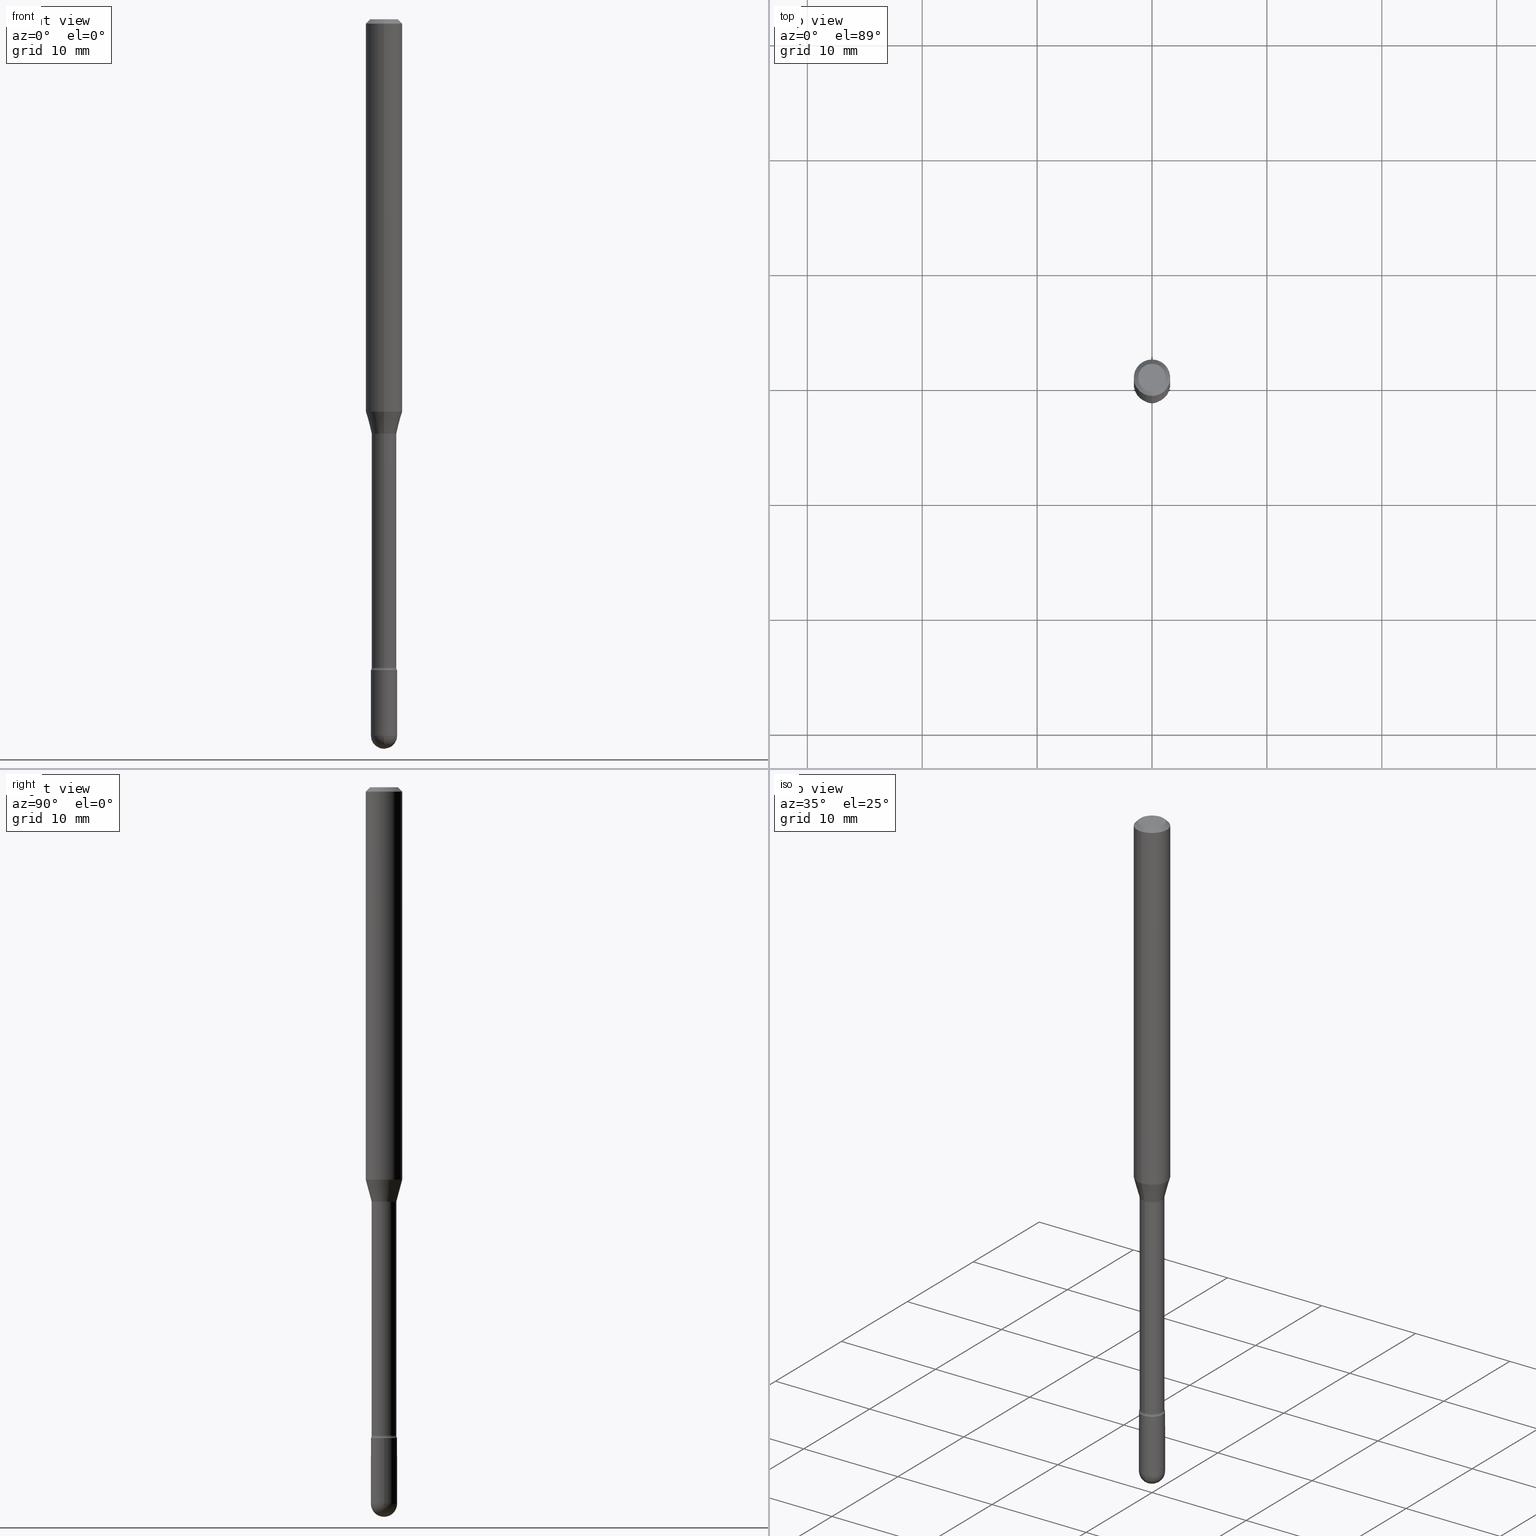
[diagram: canonical four-view strip — front | top / right | iso, engineering-drawing reading convention]
A machine part, canonical four-view strip (front | top / right | iso — engineering-drawing reading convention). The complete STEP part file that produces these views, byte-faithful:
ISO-10303-21;
HEADER;
FILE_DESCRIPTION (( 'STEP AP203' ),
    '1' );
FILE_NAME ('03798.STEP',
    '2024-04-09T20:30:29',
    ( '' ),
    ( '' ),
    'SwSTEP 2.0',
    'SolidWorks 2023',
    '' );
FILE_SCHEMA (( 'CONFIG_CONTROL_DESIGN' ));
ENDSEC;

DATA;
#1 = CARTESIAN_POINT ( 'NONE',  ( 5.432399980752294225E-29, -7.756027437338970612E-15, -2.221414547187247734 ) ) ;
#2 = EDGE_CURVE ( 'NONE', #392, #203, #393, .T. ) ;
#3 = ORIENTED_EDGE ( 'NONE', *, *, #366, .F. ) ;
#4 =( NAMED_UNIT ( * ) PLANE_ANGLE_UNIT ( ) SI_UNIT ( $, .RADIAN. ) );
#5 = ADVANCED_FACE ( 'NONE', ( #401 ), #406, .T. ) ;
#6 = TOROIDAL_SURFACE ( 'NONE', #330, 0.05730000000000000371, 0.01500000000000002373 ) ;
#7 = AXIS2_PLACEMENT_3D ( 'NONE', #399, #521, #439 ) ;
#8 = ADVANCED_FACE ( 'NONE', ( #484 ), #396, .T. ) ;
#9 = VERTEX_POINT ( 'NONE', #311 ) ;
#10 = ORIENTED_EDGE ( 'NONE', *, *, #250, .F. ) ;
#11 = ORIENTED_EDGE ( 'NONE', *, *, #540, .F. ) ;
#12 = PERSON_AND_ORGANIZATION ( #244, #408 ) ;
#13 = PERSON_AND_ORGANIZATION_ROLE ( 'classification_officer' ) ;
#14 = TOROIDAL_SURFACE ( 'NONE', #177, 0.05730000000000009391, 0.01499999999999997169 ) ;
#15 = CC_DESIGN_SECURITY_CLASSIFICATION ( #33, ( #350 ) ) ;
#16 = CARTESIAN_POINT ( 'NONE',  ( 4.071409875905923573E-16, 0.05729999999999233623, -2.221414547187248179 ) ) ;
#17 = EDGE_CURVE ( 'NONE', #344, #522, #564, .T. ) ;
#18 = LINE ( 'NONE', #510, #277 ) ;
#19 = DIRECTION ( 'NONE',  ( -2.445448483351533547E-29, 3.491510442297568953E-15, 1.000000000000000000 ) ) ;
#20 = CYLINDRICAL_SURFACE ( 'NONE', #457, 0.04499999999999999833 ) ;
#21 = ADVANCED_FACE ( 'NONE', ( #261 ), #76, .T. ) ;
#22 = ORIENTED_EDGE ( 'NONE', *, *, #166, .T. ) ;
#23 = LINE ( 'NONE', #62, #30 ) ;
#24 = CARTESIAN_POINT ( 'NONE',  ( -0.04499999999999999833, -7.859050805148022285E-15, -2.229999999999999982 ) ) ;
#25 = DIRECTION ( 'NONE',  ( 1.000000000000000000, -6.982962677686269077E-15, 0.000000000000000000 ) ) ;
#26 = ORIENTED_EDGE ( 'NONE', *, *, #296, .F. ) ;
#27 = EDGE_CURVE ( 'NONE', #287, #229, #232, .T. ) ;
#28 = CARTESIAN_POINT ( 'NONE',  ( 6.003625919184510659E-29, -8.571586686859923311E-15, -2.455000000000000071 ) ) ;
#29 = CARTESIAN_POINT ( 'NONE',  ( 4.440892098500956497E-16, 0.06249999999999533706, -1.344612573687109514 ) ) ;
#30 = VECTOR ( 'NONE', #239, 39.37007874015748143 ) ;
#31 = EDGE_LOOP ( 'NONE', ( #255, #516, #237, #478 ) ) ;
#32 = AXIS2_PLACEMENT_3D ( 'NONE', #418, #191, #548 ) ;
#33 = SECURITY_CLASSIFICATION ( '', '', #542 ) ;
#34 = EDGE_LOOP ( 'NONE', ( #22, #51, #495, #74, #304 ) ) ;
#35 = LINE ( 'NONE', #324, #268 ) ;
#36 = VERTEX_POINT ( 'NONE', #317 ) ;
#37 = ORIENTED_EDGE ( 'NONE', *, *, #59, .F. ) ;
#38 = AXIS2_PLACEMENT_3D ( 'NONE', #248, #246, #432 ) ;
#39 = PERSON_AND_ORGANIZATION ( #244, #408 ) ;
#40 = DIRECTION ( 'NONE',  ( 6.982962677686265922E-15, 1.000000000000000000, -6.070773319253922996E-15 ) ) ;
#41 = PRODUCT ( '03798', '03798', '', ( #175 ) ) ;
#42 = EDGE_CURVE ( 'NONE', #100, #346, #186, .T. ) ;
#43 = ORIENTED_EDGE ( 'NONE', *, *, #104, .T. ) ;
#44 = APPROVAL_ROLE ( '' ) ;
#45 = CONICAL_SURFACE ( 'NONE', #537, 0.04281111260566398957, 0.2617993877991505736 ) ;
#46 = ORIENTED_EDGE ( 'NONE', *, *, #370, .F. ) ;
#47 = CIRCLE ( 'NONE', #207, 0.01499999999999996822 ) ;
#48 = DIRECTION ( 'NONE',  ( -2.445468806185136597E-29, 3.491481338843145583E-15, 1.000000000000000000 ) ) ;
#49 = DIRECTION ( 'NONE',  ( -6.982962677686265922E-15, -1.000000000000000000, 6.458269488567979236E-15 ) ) ;
#50 = EDGE_CURVE ( 'NONE', #488, #55, #256, .T. ) ;
#51 = ORIENTED_EDGE ( 'NONE', *, *, #89, .T. ) ;
#52 = APPROVAL_STATUS ( 'not_yet_approved' ) ;
#53 = CC_DESIGN_PERSON_AND_ORGANIZATION_ASSIGNMENT ( #170, #265, ( #92 ) ) ;
#54 = CARTESIAN_POINT ( 'NONE',  ( 5.432354835314088584E-29, -7.756092088176000346E-15, -2.221414547187247734 ) ) ;
#55 = VERTEX_POINT ( 'NONE', #126 ) ;
#56 = AXIS2_PLACEMENT_3D ( 'NONE', #16, #151, #281 ) ;
#57 = CALENDAR_DATE ( 2024, 9, 4 ) ;
#58 = CC_DESIGN_APPROVAL ( #512, ( #92 ) ) ;
#59 = EDGE_CURVE ( 'NONE', #178, #36, #272, .T. ) ;
#60 = DIRECTION ( 'NONE',  ( -2.445448483351533547E-29, 3.491510442297568953E-15, 1.000000000000000000 ) ) ;
#61 = EDGE_CURVE ( 'NONE', #344, #425, #480, .T. ) ;
#62 = CARTESIAN_POINT ( 'NONE',  ( -0.04499999999999999833, 3.197442310920450718E-16, -2.213520790614707560E-30 ) ) ;
#63 = FACE_OUTER_BOUND ( 'NONE', #34, .T. ) ;
#64 = EDGE_LOOP ( 'NONE', ( #26, #227, #93, #440 ) ) ;
#65 = FACE_OUTER_BOUND ( 'NONE', #459, .T. ) ;
#66 = CARTESIAN_POINT ( 'NONE',  ( -4.001237614313693228E-16, -0.05730000000000785854, -2.221414547187247290 ) ) ;
#67 = DIRECTION ( 'NONE',  ( -2.445468806185136597E-29, 3.491481338843145583E-15, 1.000000000000000000 ) ) ;
#68 = VECTOR ( 'NONE', #332, 39.37007874015748143 ) ;
#69 = LOCAL_TIME ( 16, 30, 29.00000000000000000, #375 ) ;
#70 = ORIENTED_EDGE ( 'NONE', *, *, #565, .T. ) ;
#71 = DIRECTION ( 'NONE',  ( -6.982962677686266711E-15, -1.000000000000000000, 0.000000000000000000 ) ) ;
#72 = DIRECTION ( 'NONE',  ( -2.445468806185136877E-29, 3.491481338843145188E-15, 1.000000000000000000 ) ) ;
#73 = ADVANCED_FACE ( 'NONE', ( #539 ), #143, .T. ) ;
#74 = ORIENTED_EDGE ( 'NONE', *, *, #125, .F. ) ;
#75 = DIRECTION ( 'NONE',  ( -2.445448483351533547E-29, 3.491510442297568953E-15, 1.000000000000000000 ) ) ;
#76 = CONICAL_SURFACE ( 'NONE', #489, 0.06250000000000000000, 0.7853981633974483900 ) ;
#77 = AXIS2_PLACEMENT_3D ( 'NONE', #159, #552, #157 ) ;
#78 = AXIS2_PLACEMENT_3D ( 'NONE', #179, #270, #94 ) ;
#79 = ADVANCED_FACE ( 'NONE', ( #428 ), #206, .F. ) ;
#80 = LOCAL_TIME ( 16, 30, 29.00000000000000000, #286 ) ;
#81 = DIRECTION ( 'NONE',  ( -6.982962677686265133E-15, -1.000000000000000000, 6.070773319253918263E-15 ) ) ;
#82 = DIRECTION ( 'NONE',  ( -2.445448483351533547E-29, 3.491510442297568953E-15, 1.000000000000000000 ) ) ;
#83 = ORIENTED_EDGE ( 'NONE', *, *, #42, .T. ) ;
#84 = DIRECTION ( 'NONE',  ( -1.000000000000000000, 6.982962677686265922E-15, -4.883557194083112340E-29 ) ) ;
#85 = APPROVAL ( #52, 'UNSPECIFIED' ) ;
#86 = CARTESIAN_POINT ( 'NONE',  ( 3.467872157747869165E-29, -4.951284778134148509E-15, -1.418092501787273196 ) ) ;
#87 = APPROVAL_STATUS ( 'not_yet_approved' ) ;
#88 = VERTEX_POINT ( 'NONE', #458 ) ;
#89 = EDGE_CURVE ( 'NONE', #465, #229, #23, .T. ) ;
#90 = ADVANCED_FACE ( 'NONE', ( #423 ), #242, .T. ) ;
#91 = DIRECTION ( 'NONE',  ( -6.982962677686265922E-15, -1.000000000000000000, 3.491510442297568953E-15 ) ) ;
#92 = PRODUCT_DEFINITION ( 'UNKNOWN', '', #350, #184 ) ;
#93 = ORIENTED_EDGE ( 'NONE', *, *, #200, .T. ) ;
#94 = DIRECTION ( 'NONE',  ( 1.000000000000000000, 0.000000000000000000, 0.000000000000000000 ) ) ;
#95 = DIRECTION ( 'NONE',  ( -2.445448483351533547E-29, 3.491510442297568953E-15, 1.000000000000000000 ) ) ;
#96 =( GEOMETRIC_REPRESENTATION_CONTEXT ( 3 ) GLOBAL_UNCERTAINTY_ASSIGNED_CONTEXT ( ( #149 ) ) GLOBAL_UNIT_ASSIGNED_CONTEXT ( ( #404, #4, #314 ) ) REPRESENTATION_CONTEXT ( 'NONE', 'WORKASPACE' ) );
#97 = APPROVAL_PERSON_ORGANIZATION ( #502, #85, #279 ) ;
#98 = EDGE_LOOP ( 'NONE', ( #212, #379 ) ) ;
#99 = DIRECTION ( 'NONE',  ( -2.445468806185136597E-29, 3.491481338843145583E-15, 1.000000000000000000 ) ) ;
#100 = VERTEX_POINT ( 'NONE', #326 ) ;
#101 = EDGE_CURVE ( 'NONE', #229, #287, #436, .T. ) ;
#102 = AXIS2_PLACEMENT_3D ( 'NONE', #86, #483, #216 ) ;
#103 = EDGE_CURVE ( 'NONE', #425, #344, #176, .T. ) ;
#104 = EDGE_CURVE ( 'NONE', #465, #392, #301, .T. ) ;
#105 = ORIENTED_EDGE ( 'NONE', *, *, #210, .T. ) ;
#106 = CARTESIAN_POINT ( 'NONE',  ( 2.023405076526378363E-45, -2.889212134210945720E-31, -8.274564965746029547E-17 ) ) ;
#107 = DIRECTION ( 'NONE',  ( -2.445448483351533547E-29, 3.491510442297568953E-15, 1.000000000000000000 ) ) ;
#108 = DIRECTION ( 'NONE',  ( -1.000000000000000000, 7.105427357601001070E-15, -4.926315508542082329E-29 ) ) ;
#109 = PERSON_AND_ORGANIZATION ( #244, #408 ) ;
#110 = ORIENTED_EDGE ( 'NONE', *, *, #17, .T. ) ;
#111 = DIRECTION ( 'NONE',  ( -2.445448483351533547E-29, 3.491510442297568953E-15, 1.000000000000000000 ) ) ;
#112 = CARTESIAN_POINT ( 'NONE',  ( -3.773273898774340269E-16, -0.04749999999999999362, 8.310109635167423274E-17 ) ) ;
#113 = CLOSED_SHELL ( 'NONE', ( #204, #519, #517, #8, #5 ) ) ;
#114 = AXIS2_PLACEMENT_3D ( 'NONE', #211, #303, #165 ) ;
#115 = DIRECTION ( 'NONE',  ( -6.982962677686267499E-15, -1.000000000000000000, 0.000000000000000000 ) ) ;
#116 = DIRECTION ( 'NONE',  ( -6.982962677686265922E-15, -1.000000000000000000, 3.491510442297568953E-15 ) ) ;
#117 = ORIENTED_EDGE ( 'NONE', *, *, #104, .F. ) ;
#118 = LINE ( 'NONE', #202, #194 ) ;
#119 = VERTEX_POINT ( 'NONE', #345 ) ;
#120 = CARTESIAN_POINT ( 'NONE',  ( 5.453350117873919813E-29, -7.786068286323578670E-15, -2.229999999999999982 ) ) ;
#121 = FACE_OUTER_BOUND ( 'NONE', #534, .T. ) ;
#122 = AXIS2_PLACEMENT_3D ( 'NONE', #500, #99, #273 ) ;
#123 = AXIS2_PLACEMENT_3D ( 'NONE', #336, #108, #475 ) ;
#124 = ORIENTED_EDGE ( 'NONE', *, *, #59, .T. ) ;
#125 = EDGE_CURVE ( 'NONE', #203, #287, #550, .T. ) ;
#126 = CARTESIAN_POINT ( 'NONE',  ( -4.364351673553584879E-16, -0.06250000000000466294, -1.344612573687108847 ) ) ;
#127 = DIRECTION ( 'NONE',  ( -2.445468806185136597E-29, 3.491481338843145583E-15, 1.000000000000000000 ) ) ;
#128 = DATE_AND_TIME ( #173, #491 ) ;
#129 = CARTESIAN_POINT ( 'NONE',  ( 6.003625919184510659E-29, -8.571586686859923311E-15, -2.455000000000000071 ) ) ;
#130 = PERSON_AND_ORGANIZATION ( #244, #408 ) ;
#131 = AXIS2_PLACEMENT_3D ( 'NONE', #120, #300, #81 ) ;
#132 = CIRCLE ( 'NONE', #161, 0.04749999999999999362 ) ;
#133 = DIRECTION ( 'NONE',  ( -2.445448483351533547E-29, 3.491510442297568953E-15, 1.000000000000000000 ) ) ;
#134 = CC_DESIGN_APPROVAL ( #258, ( #350 ) ) ;
#135 = EDGE_LOOP ( 'NONE', ( #162, #124, #174, #560 ) ) ;
#136 = DATE_AND_TIME ( #358, #243 ) ;
#137 = CARTESIAN_POINT ( 'NONE',  ( 3.668172725027320254E-31, -5.237265663446382716E-17, -0.01500000000000008271 ) ) ;
#138 = ORIENTED_EDGE ( 'NONE', *, *, #17, .F. ) ;
#139 = ORIENTED_EDGE ( 'NONE', *, *, #419, .F. ) ;
#140 = APPLICATION_PROTOCOL_DEFINITION ( 'international standard', 'config_control_design', 1994, #146 ) ;
#141 = CIRCLE ( 'NONE', #329, 0.04499999999999999833 ) ;
#142 = CIRCLE ( 'NONE', #38, 0.04229999999999999732 ) ;
#143 = CYLINDRICAL_SURFACE ( 'NONE', #528, 0.06250000000000000000 ) ;
#144 = ORIENTED_EDGE ( 'NONE', *, *, #307, .T. ) ;
#145 = PRODUCT_RELATED_PRODUCT_CATEGORY ( 'detail', '', ( #41 ) ) ;
#146 = APPLICATION_CONTEXT ( 'configuration controlled 3d designs of mechanical parts and assemblies' ) ;
#147 = CARTESIAN_POINT ( 'NONE',  ( 0.04499999999999999833, -8.100236706116096837E-15, -2.229999999999999982 ) ) ;
#148 = CIRCLE ( 'NONE', #441, 0.01500000000000001853 ) ;
#149 = UNCERTAINTY_MEASURE_WITH_UNIT (LENGTH_MEASURE( 1.000000000000000082E-05 ), #404, 'distance_accuracy_value', 'NONE');
#150 = VERTEX_POINT ( 'NONE', #295 ) ;
#151 = DIRECTION ( 'NONE',  ( 1.000000000000000000, -7.105427357601001070E-15, 4.926315864956605330E-29 ) ) ;
#152 = DIRECTION ( 'NONE',  ( -1.000000000000000000, 6.982962677686265922E-15, -4.883557194083112340E-29 ) ) ;
#153 = DIRECTION ( 'NONE',  ( 1.000000000000000000, -7.105427357601001070E-15, 4.926315864956605330E-29 ) ) ;
#154 = CALENDAR_DATE ( 2024, 9, 4 ) ;
#155 = ADVANCED_FACE ( 'NONE', ( #343 ), #6, .F. ) ;
#156 = DIRECTION ( 'NONE',  ( -1.000000000000000000, 6.982962677686265922E-15, -4.883557194083112340E-29 ) ) ;
#157 = DIRECTION ( 'NONE',  ( 1.000000000000000000, -6.982962677686269077E-15, 0.000000000000000000 ) ) ;
#158 = ORIENTED_EDGE ( 'NONE', *, *, #282, .F. ) ;
#159 = CARTESIAN_POINT ( 'NONE',  ( 6.003625919184510659E-29, -8.571586686859921733E-15, -2.455000000000000071 ) ) ;
#160 = CARTESIAN_POINT ( 'NONE',  ( 0.000000000000000000, 0.000000000000000000, 0.000000000000000000 ) ) ;
#161 = AXIS2_PLACEMENT_3D ( 'NONE', #460, #60, #335 ) ;
#162 = ORIENTED_EDGE ( 'NONE', *, *, #497, .T. ) ;
#163 = DIRECTION ( 'NONE',  ( -2.445448483351533547E-29, 3.491510442297568953E-15, 1.000000000000000000 ) ) ;
#164 = ORIENTED_EDGE ( 'NONE', *, *, #262, .T. ) ;
#165 = DIRECTION ( 'NONE',  ( -6.982962677686265133E-15, -1.000000000000000000, 6.381165607227957288E-15 ) ) ;
#166 = EDGE_CURVE ( 'NONE', #88, #465, #141, .T. ) ;
#167 = DIRECTION ( 'NONE',  ( 1.000000000000000000, -6.982962677686269077E-15, 0.000000000000000000 ) ) ;
#168 = VECTOR ( 'NONE', #561, 39.37007874015748854 ) ;
#169 = DIRECTION ( 'NONE',  ( 2.445448483351533547E-29, -3.491510442297568953E-15, -1.000000000000000000 ) ) ;
#170 = PERSON_AND_ORGANIZATION ( #244, #408 ) ;
#171 = ADVANCED_FACE ( 'NONE', ( #249 ), #556, .T. ) ;
#172 = SPHERICAL_SURFACE ( 'NONE', #260, 0.04499999999999996364 ) ;
#173 = CALENDAR_DATE ( 2024, 9, 4 ) ;
#174 = ORIENTED_EDGE ( 'NONE', *, *, #200, .F. ) ;
#175 = MECHANICAL_CONTEXT ( 'NONE', #146, 'mechanical' ) ;
#176 = CIRCLE ( 'NONE', #506, 0.04230000000000012222 ) ;
#177 = AXIS2_PLACEMENT_3D ( 'NONE', #1, #536, #91 ) ;
#178 = VERTEX_POINT ( 'NONE', #29 ) ;
#179 = CARTESIAN_POINT ( 'NONE',  ( 0.000000000000000000, 0.000000000000000000, 0.000000000000000000 ) ) ;
#180 = ORIENTED_EDGE ( 'NONE', *, *, #50, .F. ) ;
#181 = ORIENTED_EDGE ( 'NONE', *, *, #373, .T. ) ;
#182 = CARTESIAN_POINT ( 'NONE',  ( 5.453350117873919813E-29, -7.786068286323578670E-15, -2.229999999999999982 ) ) ;
#183 = CC_DESIGN_PERSON_AND_ORGANIZATION_ASSIGNMENT ( #109, #13, ( #33 ) ) ;
#184 = DESIGN_CONTEXT ( 'detailed design', #492, 'design' ) ;
#185 = DIRECTION ( 'NONE',  ( 1.839019923739602287E-15, 0.2588190451025252359, 0.9659258262890670910 ) ) ;
#186 = CIRCLE ( 'NONE', #131, 0.04499999999999999833 ) ;
#187 = CIRCLE ( 'NONE', #348, 0.06250000000000000000 ) ;
#188 = ADVANCED_FACE ( 'NONE', ( #395 ), #45, .T. ) ;
#189 = EDGE_CURVE ( 'NONE', #257, #150, #118, .T. ) ;
#190 = ORIENTED_EDGE ( 'NONE', *, *, #101, .F. ) ;
#191 = DIRECTION ( 'NONE',  ( -2.445448483351533267E-29, 3.491510442297568953E-15, 1.000000000000000000 ) ) ;
#192 = VERTEX_POINT ( 'NONE', #235 ) ;
#193 = DIRECTION ( 'NONE',  ( -2.445448483351533547E-29, 3.491510442297568953E-15, 1.000000000000000000 ) ) ;
#194 = VECTOR ( 'NONE', #390, 39.37007874015748143 ) ;
#195 = DIRECTION ( 'NONE',  ( -2.438088387897960049E-29, 3.491481338843145188E-15, 1.000000000000000000 ) ) ;
#196 = AXIS2_PLACEMENT_3D ( 'NONE', #137, #320, #266 ) ;
#197 = DATE_TIME_ROLE ( 'classification_date' ) ;
#198 = ADVANCED_FACE ( 'NONE', ( #340 ), #285, .T. ) ;
#199 = CARTESIAN_POINT ( 'NONE',  ( 3.288180779018543257E-29, -4.694728841873150887E-15, -1.344612573687109069 ) ) ;
#200 = EDGE_CURVE ( 'NONE', #150, #36, #267, .T. ) ;
#201 = ORIENTED_EDGE ( 'NONE', *, *, #367, .F. ) ;
#202 = CARTESIAN_POINT ( 'NONE',  ( -4.287811248607203282E-16, -0.06250000000000005551, -0.01499999999999986587 ) ) ;
#203 = VERTEX_POINT ( 'NONE', #416 ) ;
#204 = ADVANCED_FACE ( 'NONE', ( #63 ), #20, .T. ) ;
#205 = CARTESIAN_POINT ( 'NONE',  ( 3.477394985924490148E-29, -4.964798434735345074E-15, -1.421974787463811118 ) ) ;
#206 = TOROIDAL_SURFACE ( 'NONE', #276, 0.05730000000000000371, 0.01500000000000002373 ) ;
#207 = AXIS2_PLACEMENT_3D ( 'NONE', #66, #156, #71 ) ;
#208 = EDGE_LOOP ( 'NONE', ( #299, #479, #110, #383 ) ) ;
#209 = ORIENTED_EDGE ( 'NONE', *, *, #50, .T. ) ;
#210 = EDGE_CURVE ( 'NONE', #119, #9, #289, .T. ) ;
#211 = CARTESIAN_POINT ( 'NONE',  ( 3.467872157747869165E-29, -4.951284778134148509E-15, -1.418092501787273196 ) ) ;
#212 = ORIENTED_EDGE ( 'NONE', *, *, #27, .T. ) ;
#213 = FACE_OUTER_BOUND ( 'NONE', #407, .T. ) ;
#214 = ORIENTED_EDGE ( 'NONE', *, *, #370, .T. ) ;
#215 = EDGE_LOOP ( 'NONE', ( #447, #158, #164, #144 ) ) ;
#216 = DIRECTION ( 'NONE',  ( -6.982962677686265133E-15, -1.000000000000000000, 6.381165607227957288E-15 ) ) ;
#217 = PERSON_AND_ORGANIZATION ( #244, #408 ) ;
#218 = CIRCLE ( 'NONE', #538, 0.04499999999999996364 ) ;
#219 = CARTESIAN_POINT ( 'NONE',  ( 6.003625919184510659E-29, -8.571586686859921733E-15, -2.455000000000000071 ) ) ;
#220 = CARTESIAN_POINT ( 'NONE',  ( 3.668172725027320254E-31, -5.237265663446382716E-17, -0.01500000000000008271 ) ) ;
#221 = DIRECTION ( 'NONE',  ( 1.000000000000000000, -6.982962677686269077E-15, 0.000000000000000000 ) ) ;
#222 = DIRECTION ( 'NONE',  ( -6.982962677686265922E-15, -1.000000000000000000, 4.370956789862821150E-15 ) ) ;
#223 = ORIENTED_EDGE ( 'NONE', *, *, #312, .F. ) ;
#224 = AXIS2_PLACEMENT_3D ( 'NONE', #351, #127, #308 ) ;
#225 = CIRCLE ( 'NONE', #507, 0.04499999999999999833 ) ;
#226 = APPROVAL_PERSON_ORGANIZATION ( #217, #258, #362 ) ;
#227 = ORIENTED_EDGE ( 'NONE', *, *, #189, .T. ) ;
#228 = EDGE_CURVE ( 'NONE', #55, #150, #337, .T. ) ;
#229 = VERTEX_POINT ( 'NONE', #24 ) ;
#230 = APPROVAL_DATE_TIME ( #236, #85 ) ;
#231 = PERSON_AND_ORGANIZATION_ROLE ( 'design_supplier' ) ;
#232 = CIRCLE ( 'NONE', #313, 0.04499999999999999833 ) ;
#233 = FACE_OUTER_BOUND ( 'NONE', #409, .T. ) ;
#234 = AXIS2_PLACEMENT_3D ( 'NONE', #292, #333, #424 ) ;
#235 = CARTESIAN_POINT ( 'NONE',  ( 6.115596139613495537E-29, -8.725947891809782708E-15, -2.500000000000000000 ) ) ;
#236 = DATE_AND_TIME ( #154, #80 ) ;
#237 = ORIENTED_EDGE ( 'NONE', *, *, #357, .T. ) ;
#238 = DIRECTION ( 'NONE',  ( -6.982962677686265922E-15, -1.000000000000000000, 3.483106191921935554E-15 ) ) ;
#239 = DIRECTION ( 'NONE',  ( -2.445468806185136877E-29, 3.491481338843145188E-15, 1.000000000000000000 ) ) ;
#240 = EDGE_LOOP ( 'NONE', ( #361, #328, #504, #180 ) ) ;
#241 = CARTESIAN_POINT ( 'NONE',  ( 3.477366087367496300E-29, -4.964839819113763351E-15, -1.421974787463811118 ) ) ;
#242 = CONICAL_SURFACE ( 'NONE', #562, 0.04281111260566398957, 0.2617993877991505736 ) ;
#243 = LOCAL_TIME ( 16, 30, 29.00000000000000000, #259 ) ;
#244 = PERSON ( 'UNSPECIFIED', 'UNSPECIFIED', 'UNSPECIFIED', ('UNSPECIFIED'), ('UNSPECIFIED'), ('UNSPECIFIED') ) ;
#245 = CARTESIAN_POINT ( 'NONE',  ( -4.364351673553916201E-16, -0.06250000000000000000, 6.962928015348440735E-16 ) ) ;
#246 = DIRECTION ( 'NONE',  ( -2.445448483351533547E-29, 3.491510442297568953E-15, 1.000000000000000000 ) ) ;
#247 = DIRECTION ( 'NONE',  ( -6.982962677686266711E-15, -1.000000000000000000, 3.491510442297569742E-15 ) ) ;
#248 = CARTESIAN_POINT ( 'NONE',  ( 3.477366087367496300E-29, -4.964839819113763351E-15, -1.421974787463811118 ) ) ;
#249 = FACE_OUTER_BOUND ( 'NONE', #208, .T. ) ;
#250 = EDGE_CURVE ( 'NONE', #178, #55, #563, .T. ) ;
#251 = CC_DESIGN_PERSON_AND_ORGANIZATION_ASSIGNMENT ( #130, #231, ( #350 ) ) ;
#252 = VECTOR ( 'NONE', #72, 39.37007874015748143 ) ;
#253 = VECTOR ( 'NONE', #429, 39.37007874015748143 ) ;
#254 = CARTESIAN_POINT ( 'NONE',  ( -0.04499999999999999833, -7.859050805148022285E-15, -2.455000000000000071 ) ) ;
#255 = ORIENTED_EDGE ( 'NONE', *, *, #210, .F. ) ;
#256 = LINE ( 'NONE', #398, #168 ) ;
#257 = VERTEX_POINT ( 'NONE', #112 ) ;
#258 = APPROVAL ( #566, 'UNSPECIFIED' ) ;
#259 = COORDINATED_UNIVERSAL_TIME_OFFSET ( 5, 0, .BEHIND. ) ;
#260 = AXIS2_PLACEMENT_3D ( 'NONE', #371, #389, #415 ) ;
#261 = FACE_OUTER_BOUND ( 'NONE', #64, .T. ) ;
#262 = EDGE_CURVE ( 'NONE', #269, #36, #473, .T. ) ;
#263 = FACE_OUTER_BOUND ( 'NONE', #98, .T. ) ;
#264 = ORIENTED_EDGE ( 'NONE', *, *, #307, .F. ) ;
#265 = PERSON_AND_ORGANIZATION_ROLE ( 'creator' ) ;
#266 = DIRECTION ( 'NONE',  ( 6.982962677686265922E-15, 1.000000000000000000, -3.483106191921935554E-15 ) ) ;
#267 = CIRCLE ( 'NONE', #234, 0.06250000000000000000 ) ;
#268 = VECTOR ( 'NONE', #185, 39.37007874015748143 ) ;
#269 = VERTEX_POINT ( 'NONE', #509 ) ;
#270 = DIRECTION ( 'NONE',  ( 0.000000000000000000, 0.000000000000000000, 1.000000000000000000 ) ) ;
#271 = CARTESIAN_POINT ( 'NONE',  ( 3.288180779018543257E-29, -4.694728841873150887E-15, -1.344612573687109069 ) ) ;
#272 = LINE ( 'NONE', #453, #515 ) ;
#273 = DIRECTION ( 'NONE',  ( 1.000000000000000000, -6.982962677686269077E-15, 0.000000000000000000 ) ) ;
#274 = EDGE_CURVE ( 'NONE', #425, #346, #498, .T. ) ;
#275 = SHAPE_DEFINITION_REPRESENTATION ( #445, #294 ) ;
#276 = AXIS2_PLACEMENT_3D ( 'NONE', #421, #468, #378 ) ;
#277 = VECTOR ( 'NONE', #107, 39.37007874015748143 ) ;
#278 = EDGE_LOOP ( 'NONE', ( #372, #341, #209, #10 ) ) ;
#279 = APPROVAL_ROLE ( '' ) ;
#280 = DIRECTION ( 'NONE',  ( -2.445448483351533547E-29, 3.491510442297568953E-15, 1.000000000000000000 ) ) ;
#281 = DIRECTION ( 'NONE',  ( 7.105427357601001859E-15, 1.000000000000000000, 0.000000000000000000 ) ) ;
#282 = EDGE_CURVE ( 'NONE', #269, #257, #529, .T. ) ;
#283 = DIRECTION ( 'NONE',  ( 1.000000000000000000, -6.982962677686265922E-15, 4.876176775795935793E-29 ) ) ;
#284 = CARTESIAN_POINT ( 'NONE',  ( 3.316907271900976096E-16, 0.04749999999999999362, 3.181712860775839881E-17 ) ) ;
#285 = CYLINDRICAL_SURFACE ( 'NONE', #288, 0.06250000000000000000 ) ;
#286 = COORDINATED_UNIVERSAL_TIME_OFFSET ( 5, 0, .BEHIND. ) ;
#287 = VERTEX_POINT ( 'NONE', #147 ) ;
#288 = AXIS2_PLACEMENT_3D ( 'NONE', #463, #391, #469 ) ;
#289 = CIRCLE ( 'NONE', #380, 0.01500000000000001853 ) ;
#290 = DIRECTION ( 'NONE',  ( -2.445468806185136597E-29, 3.491481338843145583E-15, 1.000000000000000000 ) ) ;
#291 = LOCAL_TIME ( 16, 30, 29.00000000000000000, #448 ) ;
#292 = CARTESIAN_POINT ( 'NONE',  ( 3.668172725027320254E-31, -5.237265663446382716E-17, -0.01500000000000008271 ) ) ;
#293 = EDGE_LOOP ( 'NONE', ( #410, #471, #214, #83 ) ) ;
#294 = ADVANCED_BREP_SHAPE_REPRESENTATION ( '03798', ( #464, #461, #78 ), #96 ) ;
#295 = CARTESIAN_POINT ( 'NONE',  ( -4.364351673553912750E-16, -0.06250000000000005551, -0.01499999999999986587 ) ) ;
#296 = EDGE_CURVE ( 'NONE', #257, #269, #132, .T. ) ;
#297 = EDGE_CURVE ( 'NONE', #425, #9, #18, .T. ) ;
#298 = DIRECTION ( 'NONE',  ( -2.445448483351533547E-29, 3.491510442297568953E-15, 1.000000000000000000 ) ) ;
#299 = ORIENTED_EDGE ( 'NONE', *, *, #297, .F. ) ;
#300 = DIRECTION ( 'NONE',  ( -2.445448483351533547E-29, 3.491510442297568953E-15, 1.000000000000000000 ) ) ;
#301 = CIRCLE ( 'NONE', #77, 0.04499999999999999833 ) ;
#302 = CIRCLE ( 'NONE', #342, 0.04499999999999999833 ) ;
#303 = DIRECTION ( 'NONE',  ( -2.445448483351533547E-29, 3.491510442297568953E-15, 1.000000000000000000 ) ) ;
#304 = ORIENTED_EDGE ( 'NONE', *, *, #540, .T. ) ;
#305 = DIRECTION ( 'NONE',  ( -2.445468806185136597E-29, 3.491481338843145583E-15, 1.000000000000000000 ) ) ;
#306 = CYLINDRICAL_SURFACE ( 'NONE', #482, 0.04230000000000005977 ) ;
#307 = EDGE_CURVE ( 'NONE', #36, #150, #437, .T. ) ;
#308 = DIRECTION ( 'NONE',  ( 1.000000000000000000, -6.982962677686266711E-15, 4.876176775795935793E-29 ) ) ;
#309 = CARTESIAN_POINT ( 'NONE',  ( -2.953793212660942943E-16, -0.04230000000000496557, -1.421974787463810896 ) ) ;
#310 = APPLICATION_PROTOCOL_DEFINITION ( 'international standard', 'config_control_design', 1994, #492 ) ;
#311 = CARTESIAN_POINT ( 'NONE',  ( 3.005595772265769882E-16, 0.04229999999999502908, -1.421974787463811563 ) ) ;
#312 = EDGE_CURVE ( 'NONE', #522, #9, #403, .T. ) ;
#313 = AXIS2_PLACEMENT_3D ( 'NONE', #558, #520, #486 ) ;
#314 =( NAMED_UNIT ( * ) SI_UNIT ( $, .STERADIAN. ) SOLID_ANGLE_UNIT ( ) );
#315 = AXIS2_PLACEMENT_3D ( 'NONE', #199, #386, #551 ) ;
#316 = DIRECTION ( 'NONE',  ( -6.982962677686265922E-15, -1.000000000000000000, 3.491510442297568953E-15 ) ) ;
#317 = CARTESIAN_POINT ( 'NONE',  ( 4.440892098500956497E-16, 0.06249999999999993755, -0.01500000000000030129 ) ) ;
#318 = FACE_OUTER_BOUND ( 'NONE', #293, .T. ) ;
#319 = ADVANCED_FACE ( 'NONE', ( #65 ), #427, .F. ) ;
#320 = DIRECTION ( 'NONE',  ( 2.445448483351533547E-29, -3.491510442297568953E-15, -1.000000000000000000 ) ) ;
#321 = ORIENTED_EDGE ( 'NONE', *, *, #565, .F. ) ;
#322 = PERSON_AND_ORGANIZATION_ROLE ( 'design_owner' ) ;
#323 = CALENDAR_DATE ( 2024, 9, 4 ) ;
#324 = CARTESIAN_POINT ( 'NONE',  ( 3.041912507176566342E-16, 0.04281111260565903520, -1.418092501787273418 ) ) ;
#325 = AXIS2_PLACEMENT_3D ( 'NONE', #106, #280, #544 ) ;
#326 = CARTESIAN_POINT ( 'NONE',  ( -3.142333204958272057E-16, -0.04500000000000777683, -2.229999999999999538 ) ) ;
#327 = CARTESIAN_POINT ( 'NONE',  ( -1.169113584055446105E-44, 1.669184350826100908E-30, 4.780733988912460139E-16 ) ) ;
#328 = ORIENTED_EDGE ( 'NONE', *, *, #477, .T. ) ;
#329 = AXIS2_PLACEMENT_3D ( 'NONE', #513, #290, #25 ) ;
#330 = AXIS2_PLACEMENT_3D ( 'NONE', #205, #75, #116 ) ;
#331 = AXIS2_PLACEMENT_3D ( 'NONE', #353, #195, #283 ) ;
#332 = DIRECTION ( 'NONE',  ( 4.937700262164548042E-15, 0.7071067811865451302, -0.7071067811865499042 ) ) ;
#333 = DIRECTION ( 'NONE',  ( -2.445448483351533547E-29, 3.491510442297568953E-15, 1.000000000000000000 ) ) ;
#334 = ADVANCED_FACE ( 'NONE', ( #541 ), #374, .F. ) ;
#335 = DIRECTION ( 'NONE',  ( -6.982962677686266711E-15, -1.000000000000000000, 3.491510442297569347E-15 ) ) ;
#336 = CARTESIAN_POINT ( 'NONE',  ( 6.003625919184510659E-29, -8.571586686859923311E-15, -2.455000000000000071 ) ) ;
#337 = LINE ( 'NONE', #245, #253 ) ;
#338 = CARTESIAN_POINT ( 'NONE',  ( -4.001237614313882555E-16, -0.05730000000000497196, -1.421974787463810896 ) ) ;
#339 = CARTESIAN_POINT ( 'NONE',  ( 0.04499999999999999833, -3.142333204958819823E-16, 2.194279549108170967E-30 ) ) ;
#340 = FACE_OUTER_BOUND ( 'NONE', #364, .T. ) ;
#341 = ORIENTED_EDGE ( 'NONE', *, *, #419, .T. ) ;
#342 = AXIS2_PLACEMENT_3D ( 'NONE', #219, #48, #221 ) ;
#343 = FACE_OUTER_BOUND ( 'NONE', #454, .T. ) ;
#344 = VERTEX_POINT ( 'NONE', #377 ) ;
#345 = CARTESIAN_POINT ( 'NONE',  ( 3.741402302838760433E-16, 0.04281111260565903520, -1.418092501787273418 ) ) ;
#346 = VERTEX_POINT ( 'NONE', #462 ) ;
#347 = CARTESIAN_POINT ( 'NONE',  ( 6.003625919184510659E-29, -8.571586686859921733E-15, -2.455000000000000071 ) ) ;
#348 = AXIS2_PLACEMENT_3D ( 'NONE', #271, #452, #222 ) ;
#349 = DIRECTION ( 'NONE',  ( -6.982962677686266711E-15, -1.000000000000000000, 3.491510442297569742E-15 ) ) ;
#350 = PRODUCT_DEFINITION_FORMATION_WITH_SPECIFIED_SOURCE ( 'ANY', '', #41, .NOT_KNOWN. ) ;
#351 = CARTESIAN_POINT ( 'NONE',  ( 0.000000000000000000, 0.000000000000000000, 0.000000000000000000 ) ) ;
#352 = COORDINATED_UNIVERSAL_TIME_OFFSET ( 5, 0, .BEHIND. ) ;
#353 = CARTESIAN_POINT ( 'NONE',  ( 5.453395437792854252E-29, -7.786003385620215150E-15, -2.229999999999999982 ) ) ;
#354 = ORIENTED_EDGE ( 'NONE', *, *, #367, .T. ) ;
#355 = PERSON_AND_ORGANIZATION_ROLE ( 'creator' ) ;
#356 = EDGE_LOOP ( 'NONE', ( #365, #557 ) ) ;
#357 = EDGE_CURVE ( 'NONE', #488, #522, #148, .T. ) ;
#358 = CALENDAR_DATE ( 2024, 9, 4 ) ;
#359 = CONICAL_SURFACE ( 'NONE', #196, 0.06250000000000000000, 0.7853981633974483900 ) ;
#360 = FACE_OUTER_BOUND ( 'NONE', #215, .T. ) ;
#361 = ORIENTED_EDGE ( 'NONE', *, *, #435, .T. ) ;
#362 = APPROVAL_ROLE ( '' ) ;
#363 = DIRECTION ( 'NONE',  ( -2.445448483351533547E-29, 3.491510442297568953E-15, 1.000000000000000000 ) ) ;
#364 = EDGE_LOOP ( 'NONE', ( #37, #546, #554, #264 ) ) ;
#365 = ORIENTED_EDGE ( 'NONE', *, *, #282, .T. ) ;
#366 = EDGE_CURVE ( 'NONE', #192, #392, #472, .T. ) ;
#367 = EDGE_CURVE ( 'NONE', #192, #88, #218, .T. ) ;
#368 = AXIS2_PLACEMENT_3D ( 'NONE', #129, #84, #40 ) ;
#369 = CIRCLE ( 'NONE', #114, 0.04281111260566398957 ) ;
#370 = EDGE_CURVE ( 'NONE', #344, #100, #47, .T. ) ;
#371 = CARTESIAN_POINT ( 'NONE',  ( 6.003625919184510659E-29, -8.571586686859923311E-15, -2.455000000000000071 ) ) ;
#372 = ORIENTED_EDGE ( 'NONE', *, *, #477, .F. ) ;
#373 = EDGE_CURVE ( 'NONE', #9, #522, #142, .T. ) ;
#374 = PLANE ( 'NONE',  #523 ) ;
#375 = COORDINATED_UNIVERSAL_TIME_OFFSET ( 5, 0, .BEHIND. ) ;
#376 = CARTESIAN_POINT ( 'NONE',  ( 4.364351673553919652E-16, 0.06249999999999995143, -0.01500000000000030129 ) ) ;
#377 = CARTESIAN_POINT ( 'NONE',  ( -2.953793212660755588E-16, -0.04230000000000787991, -2.221414547187247290 ) ) ;
#378 = DIRECTION ( 'NONE',  ( -6.982962677686265922E-15, -1.000000000000000000, 3.491510442297568953E-15 ) ) ;
#379 = ORIENTED_EDGE ( 'NONE', *, *, #101, .T. ) ;
#380 = AXIS2_PLACEMENT_3D ( 'NONE', #549, #153, #514 ) ;
#381 = DIRECTION ( 'NONE',  ( -6.982962677686265133E-15, -1.000000000000000000, 6.381165607227957288E-15 ) ) ;
#382 = DIRECTION ( 'NONE',  ( 1.000000000000000000, -6.982962677686266711E-15, 4.876176775795935793E-29 ) ) ;
#383 = ORIENTED_EDGE ( 'NONE', *, *, #373, .F. ) ;
#384 = DIRECTION ( 'NONE',  ( 1.000000000000000000, -6.982962677686265922E-15, 4.883557194083112340E-29 ) ) ;
#385 = CARTESIAN_POINT ( 'NONE',  ( 3.467872157747869165E-29, -4.951284778134148509E-15, -1.418092501787273196 ) ) ;
#386 = DIRECTION ( 'NONE',  ( -2.445448483351533547E-29, 3.491510442297568953E-15, 1.000000000000000000 ) ) ;
#387 = ORIENTED_EDGE ( 'NONE', *, *, #2, .F. ) ;
#388 = ADVANCED_FACE ( 'NONE', ( #213 ), #306, .T. ) ;
#389 = DIRECTION ( 'NONE',  ( -1.000000000000000000, 6.982962677686265922E-15, -4.883557194083112340E-29 ) ) ;
#390 = DIRECTION ( 'NONE',  ( -4.851104656540964275E-15, -0.7071067811865500152, -0.7071067811865450192 ) ) ;
#391 = DIRECTION ( 'NONE',  ( -2.445448483351533547E-29, 3.491510442297568953E-15, 1.000000000000000000 ) ) ;
#392 = VERTEX_POINT ( 'NONE', #485 ) ;
#393 = CIRCLE ( 'NONE', #402, 0.04499999999999999833 ) ;
#394 = AXIS2_PLACEMENT_3D ( 'NONE', #422, #466, #238 ) ;
#395 = FACE_OUTER_BOUND ( 'NONE', #240, .T. ) ;
#396 = SPHERICAL_SURFACE ( 'NONE', #368, 0.04499999999999996364 ) ;
#397 = CARTESIAN_POINT ( 'NONE',  ( 3.101519041593385169E-16, 0.04229999999999235760, -2.221414547187248179 ) ) ;
#398 = CARTESIAN_POINT ( 'NONE',  ( -2.989484015155409328E-16, -0.04281111260566893700, -1.418092501787272974 ) ) ;
#399 = CARTESIAN_POINT ( 'NONE',  ( 5.432399980752294225E-29, -7.756027437338970612E-15, -2.221414547187247734 ) ) ;
#400 = CC_DESIGN_PERSON_AND_ORGANIZATION_ASSIGNMENT ( #12, #322, ( #41 ) ) ;
#401 = FACE_OUTER_BOUND ( 'NONE', #532, .T. ) ;
#402 = AXIS2_PLACEMENT_3D ( 'NONE', #347, #305, #167 ) ;
#403 = CIRCLE ( 'NONE', #490, 0.04229999999999999732 ) ;
#404 =( CONVERSION_BASED_UNIT ( 'INCH', #494 ) LENGTH_UNIT ( ) NAMED_UNIT ( #543 ) );
#405 = APPROVAL_DATE_TIME ( #136, #512 ) ;
#406 = CYLINDRICAL_SURFACE ( 'NONE', #224, 0.04499999999999999833 ) ;
#407 = EDGE_LOOP ( 'NONE', ( #535, #474, #223, #138 ) ) ;
#408 = ORGANIZATION ( 'UNSPECIFIED', 'UNSPECIFIED', '' ) ;
#409 = EDGE_LOOP ( 'NONE', ( #201, #412, #117, #431 ) ) ;
#410 = ORIENTED_EDGE ( 'NONE', *, *, #274, .F. ) ;
#411 = PERSON_AND_ORGANIZATION ( #244, #408 ) ;
#412 = ORIENTED_EDGE ( 'NONE', *, *, #366, .T. ) ;
#413 = CLOSED_SHELL ( 'NONE', ( #155, #388, #438, #21, #73, #188, #90, #198, #503, #334, #319, #530, #171, #79 ) ) ;
#414 = CC_DESIGN_APPROVAL ( #85, ( #33 ) ) ;
#415 = DIRECTION ( 'NONE',  ( 6.982962677686265922E-15, 1.000000000000000000, -6.070773319253922996E-15 ) ) ;
#416 = CARTESIAN_POINT ( 'NONE',  ( 0.04499999999999999833, -8.493028356735950128E-15, -2.455000000000000071 ) ) ;
#417 = ORIENTED_EDGE ( 'NONE', *, *, #103, .F. ) ;
#418 = CARTESIAN_POINT ( 'NONE',  ( 3.142333204959364630E-16, 0.04499999999999221290, -2.230000000000000426 ) ) ;
#419 = EDGE_CURVE ( 'NONE', #119, #488, #449, .T. ) ;
#420 = DIRECTION ( 'NONE',  ( 6.982962677686265922E-15, 1.000000000000000000, -3.491510442297568953E-15 ) ) ;
#421 = CARTESIAN_POINT ( 'NONE',  ( 3.477394985924490148E-29, -4.964798434735345074E-15, -1.421974787463811118 ) ) ;
#422 = CARTESIAN_POINT ( 'NONE',  ( 3.668172725027320254E-31, -5.237265663446382716E-17, -0.01500000000000008271 ) ) ;
#423 = FACE_OUTER_BOUND ( 'NONE', #278, .T. ) ;
#424 = DIRECTION ( 'NONE',  ( -6.982962677686265922E-15, -1.000000000000000000, 3.483106191921935554E-15 ) ) ;
#425 = VERTEX_POINT ( 'NONE', #397 ) ;
#426 = APPROVAL_PERSON_ORGANIZATION ( #411, #512, #44 ) ;
#427 = PLANE ( 'NONE',  #32 ) ;
#428 = FACE_OUTER_BOUND ( 'NONE', #31, .T. ) ;
#429 = DIRECTION ( 'NONE',  ( -2.445448483351533547E-29, 3.491510442297568953E-15, 1.000000000000000000 ) ) ;
#430 = CARTESIAN_POINT ( 'NONE',  ( 3.467872157747869165E-29, -4.951284778134148509E-15, -1.418092501787273196 ) ) ;
#431 = ORIENTED_EDGE ( 'NONE', *, *, #166, .F. ) ;
#432 = DIRECTION ( 'NONE',  ( -6.982962677686266711E-15, -1.000000000000000000, 6.458269488567998169E-15 ) ) ;
#433 = CARTESIAN_POINT ( 'NONE',  ( -1.169113584055446105E-44, 1.669184350826100908E-30, 4.780733988912460139E-16 ) ) ;
#434 = EDGE_LOOP ( 'NONE', ( #3, #354, #11, #387 ) ) ;
#435 = EDGE_CURVE ( 'NONE', #488, #119, #369, .T. ) ;
#436 = CIRCLE ( 'NONE', #122, 0.04499999999999999833 ) ;
#437 = CIRCLE ( 'NONE', #394, 0.06250000000000000000 ) ;
#438 = ADVANCED_FACE ( 'NONE', ( #121 ), #555, .F. ) ;
#439 = DIRECTION ( 'NONE',  ( -6.982962677686265922E-15, -1.000000000000000000, 3.491510442297568953E-15 ) ) ;
#440 = ORIENTED_EDGE ( 'NONE', *, *, #262, .F. ) ;
#441 = AXIS2_PLACEMENT_3D ( 'NONE', #338, #152, #115 ) ;
#442 = APPROVAL_DATE_TIME ( #128, #258 ) ;
#443 = CC_DESIGN_DATE_AND_TIME_ASSIGNMENT ( #545, #197, ( #33 ) ) ;
#444 = DIRECTION ( 'NONE',  ( 6.982962677686265922E-15, 1.000000000000000000, -3.483106191921935554E-15 ) ) ;
#445 = PRODUCT_DEFINITION_SHAPE ( 'NONE', 'NONE',  #92 ) ;
#446 = PLANE ( 'NONE',  #331 ) ;
#447 = ORIENTED_EDGE ( 'NONE', *, *, #189, .F. ) ;
#448 = COORDINATED_UNIVERSAL_TIME_OFFSET ( 5, 0, .BEHIND. ) ;
#449 = CIRCLE ( 'NONE', #102, 0.04281111260566398957 ) ;
#450 = ORIENTED_EDGE ( 'NONE', *, *, #89, .F. ) ;
#451 = DATE_AND_TIME ( #323, #291 ) ;
#452 = DIRECTION ( 'NONE',  ( -2.445448483351533547E-29, 3.491510442297568953E-15, 1.000000000000000000 ) ) ;
#453 = CARTESIAN_POINT ( 'NONE',  ( 4.440892098500625669E-16, 0.06250000000000000000, 2.598539962476480037E-16 ) ) ;
#454 = EDGE_LOOP ( 'NONE', ( #139, #105, #181, #526 ) ) ;
#455 = CARTESIAN_POINT ( 'NONE',  ( 5.432354835314088584E-29, -7.756092088176000346E-15, -2.221414547187247734 ) ) ;
#456 = AXIS2_PLACEMENT_3D ( 'NONE', #54, #95, #49 ) ;
#457 = AXIS2_PLACEMENT_3D ( 'NONE', #160, #67, #382 ) ;
#458 = CARTESIAN_POINT ( 'NONE',  ( 3.142333204959418864E-16, 0.04499999999999140798, -2.455000000000000071 ) ) ;
#459 = EDGE_LOOP ( 'NONE', ( #505, #321 ) ) ;
#460 = CARTESIAN_POINT ( 'NONE',  ( 2.023405076526378363E-45, -2.889212134210945720E-31, -8.274564965746029547E-17 ) ) ;
#461 = MANIFOLD_SOLID_BREP ( 'Body-Move/Copy2[2]', #413 ) ;
#462 = CARTESIAN_POINT ( 'NONE',  ( 3.197442310920995032E-16, 0.04499999999999219208, -2.230000000000000426 ) ) ;
#463 = CARTESIAN_POINT ( 'NONE',  ( -1.169113584055446105E-44, 1.669184350826100908E-30, 4.780733988912460139E-16 ) ) ;
#464 = MANIFOLD_SOLID_BREP ( 'Body-Move/Copy2[1]', #113 ) ;
#465 = VERTEX_POINT ( 'NONE', #254 ) ;
#466 = DIRECTION ( 'NONE',  ( -2.445448483351533547E-29, 3.491510442297568953E-15, 1.000000000000000000 ) ) ;
#467 = DIRECTION ( 'NONE',  ( 6.982962677686265133E-15, 1.000000000000000000, 0.000000000000000000 ) ) ;
#468 = DIRECTION ( 'NONE',  ( -2.445448483351533547E-29, 3.491510442297568953E-15, 1.000000000000000000 ) ) ;
#469 = DIRECTION ( 'NONE',  ( -6.982962677686265922E-15, -1.000000000000000000, 3.491510442297568953E-15 ) ) ;
#470 = AXIS2_PLACEMENT_3D ( 'NONE', #433, #111, #247 ) ;
#471 = ORIENTED_EDGE ( 'NONE', *, *, #61, .F. ) ;
#472 = CIRCLE ( 'NONE', #123, 0.04499999999999996364 ) ;
#473 = LINE ( 'NONE', #376, #68 ) ;
#474 = ORIENTED_EDGE ( 'NONE', *, *, #297, .T. ) ;
#475 = DIRECTION ( 'NONE',  ( -7.105427357601001070E-15, -1.000000000000000000, 0.000000000000000000 ) ) ;
#476 = DIRECTION ( 'NONE',  ( -6.982962677686265922E-15, -1.000000000000000000, 6.458269488567979236E-15 ) ) ;
#477 = EDGE_CURVE ( 'NONE', #119, #178, #35, .T. ) ;
#478 = ORIENTED_EDGE ( 'NONE', *, *, #312, .T. ) ;
#479 = ORIENTED_EDGE ( 'NONE', *, *, #103, .T. ) ;
#480 = CIRCLE ( 'NONE', #456, 0.04230000000000012222 ) ;
#481 = CC_DESIGN_PERSON_AND_ORGANIZATION_ASSIGNMENT ( #39, #355, ( #350 ) ) ;
#482 = AXIS2_PLACEMENT_3D ( 'NONE', #559, #82, #349 ) ;
#483 = DIRECTION ( 'NONE',  ( -2.445448483351533547E-29, 3.491510442297568953E-15, 1.000000000000000000 ) ) ;
#484 = FACE_OUTER_BOUND ( 'NONE', #434, .T. ) ;
#485 = CARTESIAN_POINT ( 'NONE',  ( -3.197442310919848226E-16, -0.04500000000000855399, -2.454999999999999627 ) ) ;
#486 = DIRECTION ( 'NONE',  ( 1.000000000000000000, -6.982962677686269077E-15, 0.000000000000000000 ) ) ;
#487 =( LENGTH_UNIT ( ) NAMED_UNIT ( * ) SI_UNIT ( $, .METRE. ) );
#488 = VERTEX_POINT ( 'NONE', #499 ) ;
#489 = AXIS2_PLACEMENT_3D ( 'NONE', #220, #169, #444 ) ;
#490 = AXIS2_PLACEMENT_3D ( 'NONE', #241, #193, #547 ) ;
#491 = LOCAL_TIME ( 16, 30, 29.00000000000000000, #352 ) ;
#492 = APPLICATION_CONTEXT ( 'configuration controlled 3d designs of mechanical parts and assemblies' ) ;
#493 = ORIENTED_EDGE ( 'NONE', *, *, #2, .T. ) ;
#494 = LENGTH_MEASURE_WITH_UNIT ( LENGTH_MEASURE( 0.02539999999999999897 ), #487 );
#495 = ORIENTED_EDGE ( 'NONE', *, *, #27, .F. ) ;
#496 = DIRECTION ( 'NONE',  ( -6.982962677686265133E-15, -1.000000000000000000, 6.070773319253918263E-15 ) ) ;
#497 = EDGE_CURVE ( 'NONE', #55, #178, #187, .T. ) ;
#498 = CIRCLE ( 'NONE', #56, 0.01499999999999996822 ) ;
#499 = CARTESIAN_POINT ( 'NONE',  ( -2.989484015155409328E-16, -0.04281111260566893700, -1.418092501787272974 ) ) ;
#500 = CARTESIAN_POINT ( 'NONE',  ( 5.453395437792854252E-29, -7.786003385620215150E-15, -2.229999999999999982 ) ) ;
#501 = ORIENTED_EDGE ( 'NONE', *, *, #125, .T. ) ;
#502 = PERSON_AND_ORGANIZATION ( #244, #408 ) ;
#503 = ADVANCED_FACE ( 'NONE', ( #360 ), #359, .T. ) ;
#504 = ORIENTED_EDGE ( 'NONE', *, *, #497, .F. ) ;
#505 = ORIENTED_EDGE ( 'NONE', *, *, #42, .F. ) ;
#506 = AXIS2_PLACEMENT_3D ( 'NONE', #455, #298, #476 ) ;
#507 = AXIS2_PLACEMENT_3D ( 'NONE', #182, #531, #496 ) ;
#508 = ORIENTED_EDGE ( 'NONE', *, *, #274, .T. ) ;
#509 = CARTESIAN_POINT ( 'NONE',  ( 3.840629472727447874E-16, 0.04749999999999999362, -2.485923956665947867E-16 ) ) ;
#510 = CARTESIAN_POINT ( 'NONE',  ( 3.005595772265227540E-16, 0.04230000000000005977, 3.303825071820586825E-16 ) ) ;
#511 = DIRECTION ( 'NONE',  ( 2.445448483351533267E-29, -3.491510442297568953E-15, -1.000000000000000000 ) ) ;
#512 = APPROVAL ( #87, 'UNSPECIFIED' ) ;
#513 = CARTESIAN_POINT ( 'NONE',  ( 6.003625919184510659E-29, -8.571586686859921733E-15, -2.455000000000000071 ) ) ;
#514 = DIRECTION ( 'NONE',  ( 7.105427357601001859E-15, 1.000000000000000000, 0.000000000000000000 ) ) ;
#515 = VECTOR ( 'NONE', #363, 39.37007874015748143 ) ;
#516 = ORIENTED_EDGE ( 'NONE', *, *, #435, .F. ) ;
#517 = ADVANCED_FACE ( 'NONE', ( #263 ), #446, .T. ) ;
#518 = DIRECTION ( 'NONE',  ( -6.982962677686265133E-15, -1.000000000000000000, 6.381165607227957288E-15 ) ) ;
#519 = ADVANCED_FACE ( 'NONE', ( #233 ), #172, .T. ) ;
#520 = DIRECTION ( 'NONE',  ( -2.445468806185136597E-29, 3.491481338843145583E-15, 1.000000000000000000 ) ) ;
#521 = DIRECTION ( 'NONE',  ( -2.445448483351533547E-29, 3.491510442297568953E-15, 1.000000000000000000 ) ) ;
#522 = VERTEX_POINT ( 'NONE', #309 ) ;
#523 = AXIS2_PLACEMENT_3D ( 'NONE', #284, #511, #420 ) ;
#524 = CARTESIAN_POINT ( 'NONE',  ( -2.953793212661294972E-16, -0.04230000000000005977, 6.257642906004334439E-16 ) ) ;
#525 = DATE_TIME_ROLE ( 'creation_date' ) ;
#526 = ORIENTED_EDGE ( 'NONE', *, *, #357, .F. ) ;
#527 = DIRECTION ( 'NONE',  ( -2.445448483351533547E-29, 3.491510442297568953E-15, 1.000000000000000000 ) ) ;
#528 = AXIS2_PLACEMENT_3D ( 'NONE', #327, #527, #316 ) ;
#529 = CIRCLE ( 'NONE', #325, 0.04749999999999999362 ) ;
#530 = ADVANCED_FACE ( 'NONE', ( #318 ), #14, .F. ) ;
#531 = DIRECTION ( 'NONE',  ( -2.445448483351533547E-29, 3.491510442297568953E-15, 1.000000000000000000 ) ) ;
#532 = EDGE_LOOP ( 'NONE', ( #450, #43, #493, #501, #190 ) ) ;
#533 = CC_DESIGN_DATE_AND_TIME_ASSIGNMENT ( #451, #525, ( #92 ) ) ;
#534 = EDGE_LOOP ( 'NONE', ( #417, #508, #70, #46 ) ) ;
#535 = ORIENTED_EDGE ( 'NONE', *, *, #61, .T. ) ;
#536 = DIRECTION ( 'NONE',  ( -2.445448483351533547E-29, 3.491510442297568953E-15, 1.000000000000000000 ) ) ;
#537 = AXIS2_PLACEMENT_3D ( 'NONE', #430, #163, #518 ) ;
#538 = AXIS2_PLACEMENT_3D ( 'NONE', #28, #384, #467 ) ;
#539 = FACE_OUTER_BOUND ( 'NONE', #135, .T. ) ;
#540 = EDGE_CURVE ( 'NONE', #203, #88, #302, .T. ) ;
#541 = FACE_OUTER_BOUND ( 'NONE', #356, .T. ) ;
#542 = SECURITY_CLASSIFICATION_LEVEL ( 'unclassified' ) ;
#543 = DIMENSIONAL_EXPONENTS ( 1.000000000000000000, 0.000000000000000000, 0.000000000000000000, 0.000000000000000000, 0.000000000000000000, 0.000000000000000000, 0.000000000000000000 ) ;
#544 = DIRECTION ( 'NONE',  ( -6.982962677686266711E-15, -1.000000000000000000, 3.491510442297569347E-15 ) ) ;
#545 = DATE_AND_TIME ( #57, #69 ) ;
#546 = ORIENTED_EDGE ( 'NONE', *, *, #250, .T. ) ;
#547 = DIRECTION ( 'NONE',  ( -6.982962677686266711E-15, -1.000000000000000000, 6.458269488567998169E-15 ) ) ;
#548 = DIRECTION ( 'NONE',  ( -6.982962677686265922E-15, -1.000000000000000000, 3.491510442297568953E-15 ) ) ;
#549 = CARTESIAN_POINT ( 'NONE',  ( 4.071409875905721427E-16, 0.05729999999999503546, -1.421974787463811563 ) ) ;
#550 = LINE ( 'NONE', #339, #252 ) ;
#551 = DIRECTION ( 'NONE',  ( -6.982962677686265922E-15, -1.000000000000000000, 4.370956789862821150E-15 ) ) ;
#552 = DIRECTION ( 'NONE',  ( -2.445468806185136597E-29, 3.491481338843145583E-15, 1.000000000000000000 ) ) ;
#553 = VECTOR ( 'NONE', #133, 39.37007874015748143 ) ;
#554 = ORIENTED_EDGE ( 'NONE', *, *, #228, .T. ) ;
#555 = TOROIDAL_SURFACE ( 'NONE', #7, 0.05730000000000009391, 0.01499999999999997169 ) ;
#556 = CYLINDRICAL_SURFACE ( 'NONE', #470, 0.04230000000000005977 ) ;
#557 = ORIENTED_EDGE ( 'NONE', *, *, #296, .T. ) ;
#558 = CARTESIAN_POINT ( 'NONE',  ( 5.453395437792854252E-29, -7.786003385620215150E-15, -2.229999999999999982 ) ) ;
#559 = CARTESIAN_POINT ( 'NONE',  ( -1.169113584055446105E-44, 1.669184350826100908E-30, 4.780733988912460139E-16 ) ) ;
#560 = ORIENTED_EDGE ( 'NONE', *, *, #228, .F. ) ;
#561 = DIRECTION ( 'NONE',  ( -1.807323732225332111E-15, -0.2588190451025184635, 0.9659258262890689783 ) ) ;
#562 = AXIS2_PLACEMENT_3D ( 'NONE', #385, #19, #381 ) ;
#563 = CIRCLE ( 'NONE', #315, 0.06250000000000000000 ) ;
#564 = LINE ( 'NONE', #524, #553 ) ;
#565 = EDGE_CURVE ( 'NONE', #346, #100, #225, .T. ) ;
#566 = APPROVAL_STATUS ( 'not_yet_approved' ) ;
ENDSEC;
END-ISO-10303-21;
